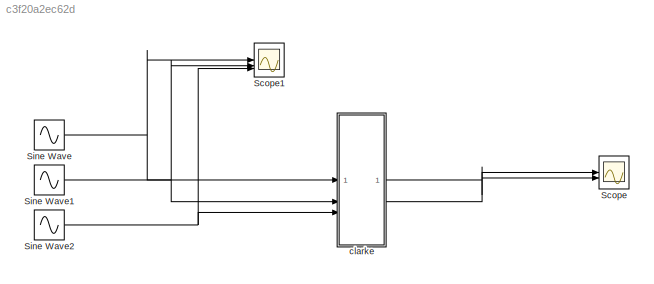
MODEL slx_c3f20a2ec62d
KIND model
CONFIG AbsTol = auto
CONFIG EnableMultiTasking = off
CONFIG FixedStep = auto
CONFIG MaxStep = auto
CONFIG MinStep = auto
CONFIG RelTol = 1e-3
CONFIG SampleTimeConstraint = Unconstrained
CONFIG SolverName = FixedStepDiscrete
CONFIG StartTime = 0.0
CONFIG StopTime = 0.001
BLOCK [Scope] Scope
  Floating = off
  NumInputPorts = 2
  ScopeSpecificationString = Simulink.scopes.TimeScopeBlockCfg('CurrentConfiguration', extmgr.ConfigurationSet(extmgr.Configuration('Core','General UI',true),extmgr.Configuration('Core','Source UI',true),extmgr.Configuration('Sources','WiredSimulink',true,'SampleTime','1e-6'),extmgr.Configuration('Visuals','Time Domain',true,'SerializedDisplays',{struct('MinYLimReal','-25.98076','MaxYLimReal','25.98076','YLabelReal','','MinYL...<+1421ch>
BLOCK [Scope] Scope1
  Floating = off
  NumInputPorts = 3
  ScopeSpecificationString = Simulink.scopes.TimeScopeBlockCfg('CurrentConfiguration', extmgr.ConfigurationSet(extmgr.Configuration('Core','General UI',true),extmgr.Configuration('Core','Source UI',true),extmgr.Configuration('Sources','WiredSimulink',true,'DataLoggingVariableName','ScopeData1','SampleTime','1e-6'),extmgr.Configuration('Visuals','Time Domain',true,'SerializedDisplays',{struct('MinYLimReal','-17.32051','MaxYLim...<+1501ch>
BLOCK [Sin] Sine Wave
  Amplitude = 24/sqrt(3)
  Frequency = 2*pi*15000
  SampleTime = 0
BLOCK [Sin] Sine Wave1
  Amplitude = 24/sqrt(3)
  Frequency = 2*pi*15000
  Phase = 2*pi/3
  SampleTime = 0
BLOCK [Sin] Sine Wave2
  Amplitude = 24/sqrt(3)
  Frequency = 2*pi*15000
  Phase = 4*pi/3
  SampleTime = 0
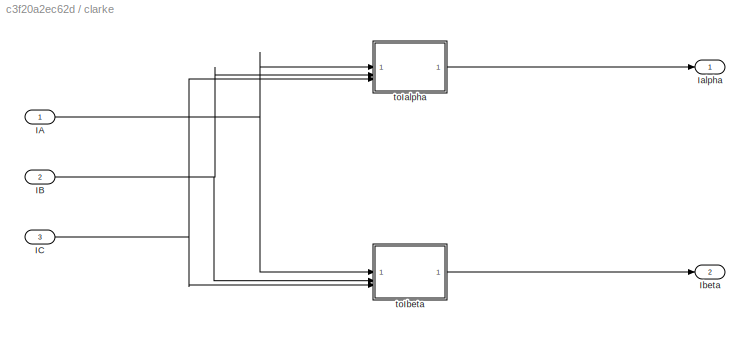
BLOCK [SubSystem] clarke
BLOCK [Inport] clarke/IA
BLOCK [Inport] clarke/IB
  Port = 2
BLOCK [Inport] clarke/IC
  Port = 3
BLOCK [Outport] clarke/Ialpha
BLOCK [Outport] clarke/Ibeta
  Port = 2
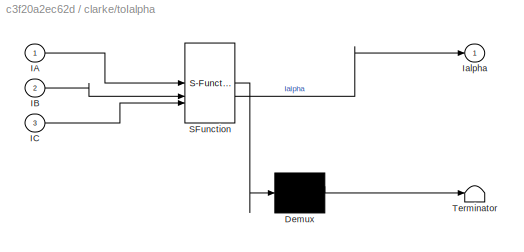
BLOCK [SubSystem] clarke/toIalpha
  ErrorFcn = Stateflow.Translate.translate
  LibrarySourceBlock = simulink/User-Defined\nFunctions/MATLAB Function
  PermitHierarchicalResolution = ExplicitOnly
  SFBlockType = MATLAB Function
  TreatAsAtomicUnit = on
BLOCK [Demux] clarke/toIalpha/ Demux 
  Outputs = 1
BLOCK [S-Function] clarke/toIalpha/ SFunction 
  EnableBusSupport = on
  FunctionName = sf_sfun
  PortCounts = [3 2]
  SFcnIsStateOwnerBlock = off
  SFunctionDeploymentMode = off
  Tag = Stateflow S-Function 6
BLOCK [Terminator] clarke/toIalpha/ Terminator 
BLOCK [Inport] clarke/toIalpha/IA
BLOCK [Inport] clarke/toIalpha/IB
  Port = 2
BLOCK [Inport] clarke/toIalpha/IC
  Port = 3
BLOCK [Outport] clarke/toIalpha/Ialpha
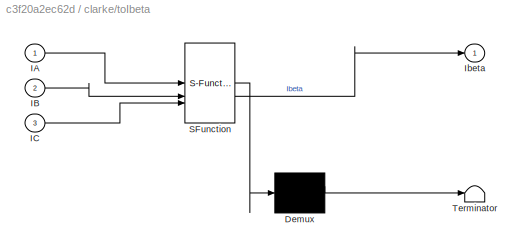
BLOCK [SubSystem] clarke/toIbeta
  ErrorFcn = Stateflow.Translate.translate
  LibrarySourceBlock = simulink/User-Defined\nFunctions/MATLAB Function
  PermitHierarchicalResolution = ExplicitOnly
  SFBlockType = MATLAB Function
  TreatAsAtomicUnit = on
BLOCK [Demux] clarke/toIbeta/ Demux 
  Outputs = 1
BLOCK [S-Function] clarke/toIbeta/ SFunction 
  EnableBusSupport = on
  FunctionName = sf_sfun
  PortCounts = [3 2]
  SFcnIsStateOwnerBlock = off
  SFunctionDeploymentMode = off
  Tag = Stateflow S-Function 7
BLOCK [Terminator] clarke/toIbeta/ Terminator 
BLOCK [Inport] clarke/toIbeta/IA
BLOCK [Inport] clarke/toIbeta/IB
  Port = 2
BLOCK [Inport] clarke/toIbeta/IC
  Port = 3
BLOCK [Outport] clarke/toIbeta/Ibeta
NET Sine Wave1:1 -> Scope1:2, clarke:2
NET Sine Wave2:1 -> Scope1:3, clarke:3
NET Sine Wave:1 -> Scope1:1, clarke:1
NET clarke/IA:1 -> clarke/toIalpha:1, clarke/toIbeta:1
NET clarke/IB:1 -> clarke/toIalpha:2, clarke/toIbeta:2
NET clarke/IC:1 -> clarke/toIalpha:3, clarke/toIbeta:3
LINE clarke/toIalpha:1 -> clarke/Ialpha:1
LINE clarke/toIbeta:1 -> clarke/Ibeta:1
LINE clarke:1 -> Scope:1
LINE clarke:2 -> Scope:2
note: NET lines group one-source signal fan-out (src -> all destinations, sorted); 1:1 wires keep LINE
CHART clarke/toIalpha states=1 transitions=1
  STATE_LABEL 'eML_blk_kernel()'
  STATE_LABEL 'SCRIPT:\nfunction Ialpha = fcn(IA, IB, IC)\n%Ialpha = IA - (IB + IC) * cosd(60);\nIalpha = IA;'
CHART clarke/toIbeta states=1 transitions=1
  STATE_LABEL 'eML_blk_kernel()'
  STATE_LABEL 'SCRIPT:\nfunction Ibeta = fcn(IA, IB, IC)\nIbeta = 2/3 *(IB - IC) * cosd(30);\n%Ibeta = (IA + 2*IB) / sqrt(3);'
CHART  states=0 transitions=0
CHART  states=0 transitions=0
